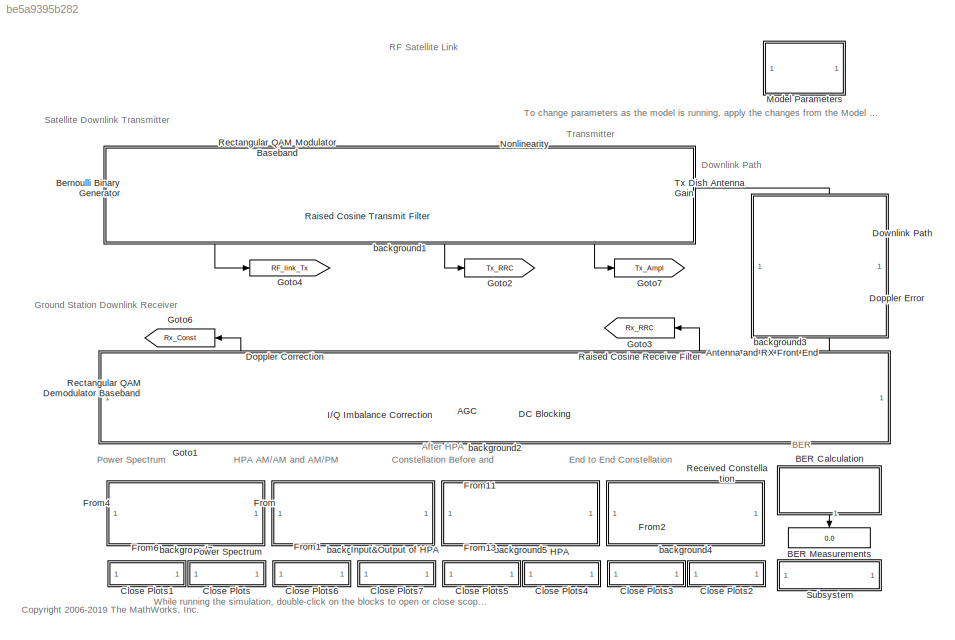
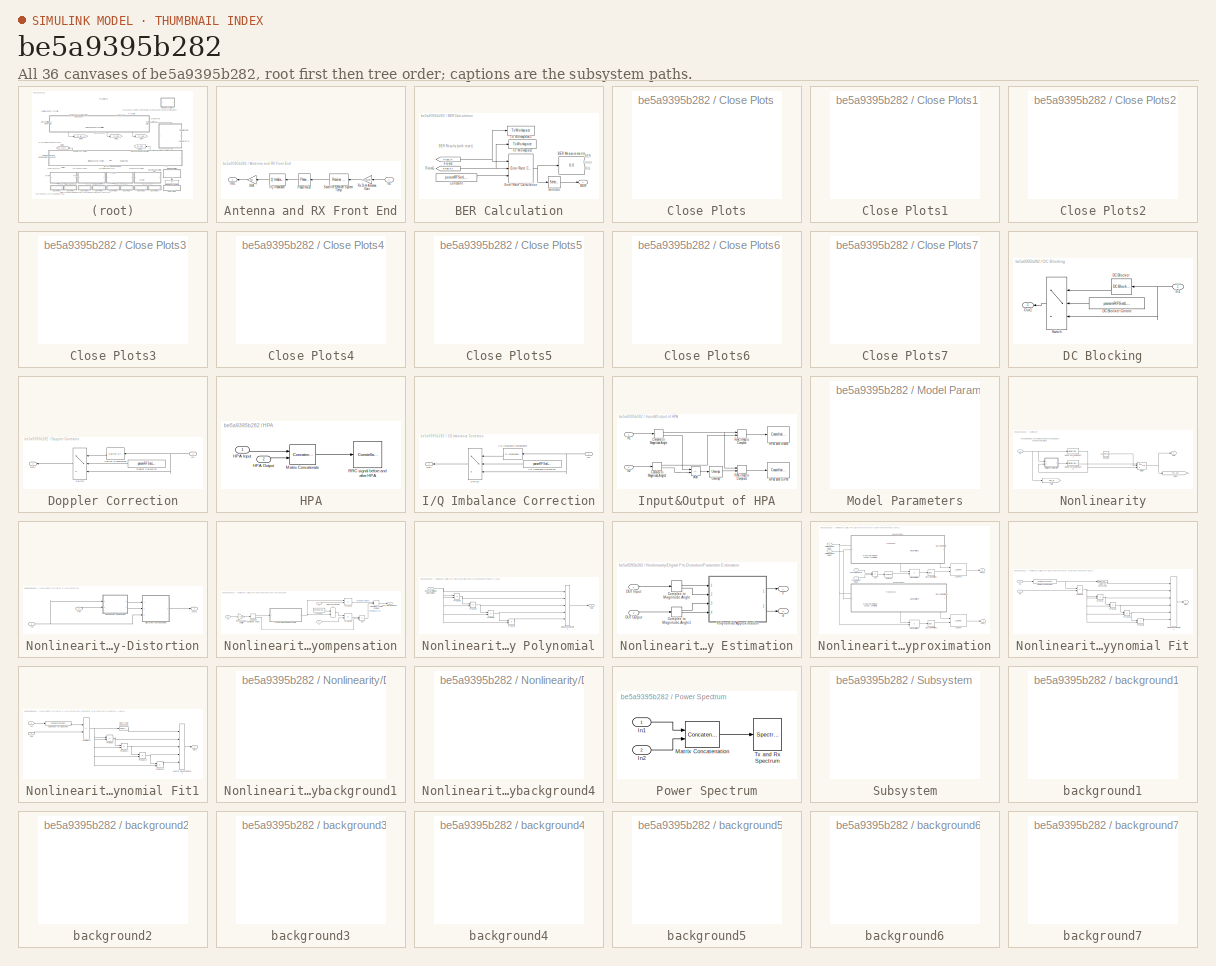
[diagram: thumbnail index - all 36 canvases of the model, root first then tree order]
MODEL slx_be5a9395b282
KIND model
CONFIG AbsTol = auto
CONFIG EnableMultiTasking = on
CONFIG FixedStep = auto
CONFIG MaxStep = auto
CONFIG MinStep = auto
CONFIG PreLoadFcn = commrfsatlink_mask(1, 2, 1, 1, 1, ...\n    0, 0, 0, 35600, 4000,[.4 .4],4,6,0);
CONFIG RelTol = 1e-3
CONFIG SampleTimeConstraint = Unconstrained
CONFIG Solver = VariableStepDiscrete
CONFIG SolverName = VariableStepDiscrete
CONFIG StartTime = 0.0
CONFIG StopTime = Inf
BLOCK [Reference] AGC  REF=commrfcorlib/AGC
  Ports = [1, 1]
  SourceBlock = commrfcorlib/AGC
  SourceProductBaseCode = CM
  SourceType = AGC
BLOCK [SubSystem] Antenna and RX Front End
  Ports = [1, 1]
  RequestExecContextInheritance = off
BLOCK [Reference] Antenna and RX Front End/I//Q Imbalance  REF=commrflib2/I//Q
Imbalance
  NameLocation = top
  Ports = [1, 1]
  SourceBlock = commrflib2/I//Q\nImbalance
  SourceProductBaseCode = CM
  SourceType = I/Q Imbalance
BLOCK [Inport] Antenna and RX Front End/In1
  NameLocation = top
BLOCK [Gain] Antenna and RX Front End/LNA
  Gain = 1e6
  NameLocation = top
BLOCK [Outport] Antenna and RX Front End/Out1
  NameLocation = top
  VectorParamsAs1DForOutWhenUnconnected = off
BLOCK [Reference] Antenna and RX Front End/Phase Noise  REF=impairlib/Phase
Noise
  NameLocation = top
  Ports = [1, 1]
  SourceBlock = impairlib/Phase\nNoise
  SourceProductBaseCode = CM,AM,SX
  SourceType = Phase Noise
BLOCK [Gain] Antenna and RX Front End/Rx Dish Antenna Gain
  Gain = paramRFSatLink.RXAntGain
  NameLocation = top
  OutDataTypeStr = Inherit: Same as input
  ParamDataTypeStr = Inherit: Same as input
  SaturateOnIntegerOverflow = on
BLOCK [Reference] Antenna and RX Front End/Satellite Receiver System Temp  REF=commrflib2/Receiver
Thermal Noise
  NameLocation = top
  Ports = [1, 1]
  SourceBlock = commrflib2/Receiver\nThermal Noise
  SourceProductBaseCode = CM
  SourceType = Receiver Thermal Noise
BLOCK [SubSystem] BER Calculation
  NameLocation = right
  Ports = [0, 1]
  RequestExecContextInheritance = off
BLOCK [Outport] BER Calculation/BER
  VectorParamsAs1DForOutWhenUnconnected = off
BLOCK [Display] BER Calculation/BER Measurements
  Decimation = 1
  Ports = [1]
BLOCK [Constant] BER Calculation/Constant
  SampleTime = paramRFSatLink.sourceSampleTime * paramRFSatLink.sourceSamplesPerSymbol
  Value = paramRFSatLink.resetBER
BLOCK [Reference] BER Calculation/Error Rate Calculation  REF=commsink2/Error Rate
Calculation
  Ports = [3, 1]
  SourceBlock = commsink2/Error Rate\nCalculation
  SourceProductBaseCode = CM
  SourceType = Error Rate Calculation
BLOCK [From] BER Calculation/From3
  GotoTag = RF_link_Tx
  TagVisibility = global
BLOCK [From] BER Calculation/From5
  GotoTag = RF_link_Rx
  TagVisibility = global
BLOCK [Selector] BER Calculation/Selector
  IndexOptions = Index vector (dialog)
  Indices = [1]
  InputPortWidth = 3
  OutputSizes = 1
  Ports = [1, 1]
BLOCK [ToWorkspace] BER Calculation/To Workspace
  FixptAsFi = on
  MaxDataPoints = inf
  Ports = [1]
  SampleTime = -1
  Save2DSignal = 2-D array (concatenate along first dimension)
  VariableName = RF_RX
BLOCK [ToWorkspace] BER Calculation/To Workspace1
  FixptAsFi = on
  MaxDataPoints = inf
  Ports = [1]
  SampleTime = -1
  VariableName = RF_TX
BLOCK [Display] BER Measurements
  Decimation = 1
  Format = short_e
  NameLocation = left
  Ports = [1]
BLOCK [Reference] Bernoulli Binary Generator  REF=commrandsrc3/Bernoulli Binary
Generator
  Ports = [0, 1]
  SourceBlock = commrandsrc3/Bernoulli Binary\nGenerator
  SourceProductBaseCode = CM
  SourceType = Bernoulli Binary Generator
BLOCK [SubSystem] Close Plots
  OpenFcn = sdspfscope2([],[],[],'ScopeUpdate',[bdroot '/Power Spectrum/Tx and Rx Spectrum'],'CloseFig');\nset_param([bdroot '/Power Spectrum/Tx and Rx Spectrum'],'OpenScopeAtSimStart','off');
  Ports = []
  RequestExecContextInheritance = off
BLOCK [SubSystem] Close Plots1
  OpenFcn = sdspfscope2([],[],[],'ScopeUpdate',[bdroot '/Power Spectrum/Tx and Rx Spectrum'],'OpenFig');\nset_param([bdroot '/Power Spectrum/Tx and Rx Spectrum'],'OpenScopeAtSimStart','on');
  Ports = []
  RequestExecContextInheritance = off
BLOCK [SubSystem] Close Plots2
  OpenFcn = sdspfscope2([],[],[],'ScopeUpdate',[bdroot '/Received Constellation'],'CloseFig');\n   set_param([bdroot '/Received Constellation'],'OpenScopeAtSimStart','off');
  Ports = []
  RequestExecContextInheritance = off
BLOCK [SubSystem] Close Plots3
  OpenFcn = sdspfscope2([],[],[],'ScopeUpdate',[bdroot '/Received Constellation'],'OpenFig');       \n    set_param([bdroot '/Received Constellation'],'OpenScopeAtSimStart','on');
  Ports = []
  RequestExecContextInheritance = off
BLOCK [SubSystem] Close Plots4
  OpenFcn = sdspfscope2([],[],[],'ScopeUpdate',[bdroot '/HPA/RRC signal before and after HPA'],'CloseFig');    \n  set_param([bdroot '/HPA/RRC signal before and after HPA'],'OpenScopeAtSimStart','off');
  Ports = []
  RequestExecContextInheritance = off
BLOCK [SubSystem] Close Plots5
  OpenFcn = sdspfscope2([],[],[],'ScopeUpdate',[bdroot '/HPA/RRC signal before and after HPA'],'OpenFig');      \nset_param([bdroot '/HPA/RRC signal before and after HPA'],'OpenScopeAtSimStart','on');
  Ports = []
  RequestExecContextInheritance = off
BLOCK [SubSystem] Close Plots6
  OpenFcn = sdspfscope2([],[],[],'ScopeUpdate',[bdroot '/Input&Output of HPA/HPA AM to AM'],'OpenFig');\nset_param([bdroot '/Input&Output of HPA/HPA AM to AM'],'OpenScopeAtSimStart','on');        \nsdspfscope2([],[],[],'ScopeUpdate',[bdroot '/Input&Output of HPA/HPA AM to PM'],'OpenFig');\nset_param([bdroot '/Input&Output of HPA/HPA AM to PM'],'OpenScopeAtSimStart','on');
  Ports = []
  RequestExecContextInheritance = off
BLOCK [SubSystem] Close Plots7
  OpenFcn = sdspfscope2([],[],[],'ScopeUpdate',[bdroot '/Input&Output of HPA/HPA AM to AM'],'CloseFig');\nset_param([bdroot '/Input&Output of HPA/HPA AM to AM'],'OpenScopeAtSimStart','off');        \nsdspfscope2([],[],[],'ScopeUpdate',[bdroot '/Input&Output of HPA/HPA AM to PM'],'CloseFig');\nset_param([bdroot '/Input&Output of HPA/HPA AM to PM'],'OpenScopeAtSimStart','off');
  Ports = []
  RequestExecContextInheritance = off
BLOCK [SubSystem] DC Blocking
  Ports = [1, 1]
  RequestExecContextInheritance = off
BLOCK [Reference] DC Blocking/DC Blocker  REF=dspsigops/DC Blocker
  Ports = [1, 1]
  SourceBlock = dspsigops/DC Blocker
  SourceProductBaseCode = DS
  SourceType = DCBlocker
BLOCK [Constant] DC Blocking/DC Blocker Control
  SampleTime = paramRFSatLink.sourceSampleTime * paramRFSatLink.sourceSamplesPerSymbol
  Value = paramRFSatLink.DCBlock
BLOCK [Inport] DC Blocking/In1
BLOCK [Outport] DC Blocking/Out1
  VectorParamsAs1DForOutWhenUnconnected = off
BLOCK [Switch] DC Blocking/Switch
  Criteria = u2 > Threshold
  InputSameDT = off
  SaturateOnIntegerOverflow = off
BLOCK [SubSystem] Doppler Correction
  Ports = [1, 1]
  RequestExecContextInheritance = off
BLOCK [Reference] Doppler Correction/Carrier Synchronizer  REF=commsync2/Carrier Synchronizer
  Ports = [1, 1]
  SourceBlock = commsync2/Carrier Synchronizer
  SourceProductBaseCode = CM
  SourceType = Carrier Synchronizer
BLOCK [Constant] Doppler Correction/Doppler Correction
  SampleTime = paramRFSatLink.sourceSampleTime * paramRFSatLink.sourceSamplesPerSymbol
  Value = paramRFSatLink.CarrierSync
BLOCK [Inport] Doppler Correction/In1
BLOCK [Outport] Doppler Correction/Out1
  VectorParamsAs1DForOutWhenUnconnected = off
BLOCK [Switch] Doppler Correction/Switch
  Criteria = u2 > Threshold
  InputSameDT = off
  SaturateOnIntegerOverflow = off
BLOCK [Reference] Doppler Error  REF=commrflib2/Phase//
Frequency
Offset
  NameLocation = left
  Ports = [1, 1]
  SourceBlock = commrflib2/Phase//\nFrequency\nOffset
  SourceProductBaseCode = CM
  SourceType = Phase/Frequency Offset
BLOCK [Reference] Downlink Path  REF=commrflib2/Free Space
Path Loss
  NameLocation = left
  Ports = [1, 1]
  SourceBlock = commrflib2/Free Space\nPath Loss
  SourceProductBaseCode = CM
  SourceType = Free Space Path Loss
BLOCK [From] From
  GotoTag = HPA_In
  TagVisibility = global
BLOCK [From] From1
  GotoTag = HPA_Out
  TagVisibility = global
BLOCK [From] From11
  GotoTag = Tx_RRC
  TagVisibility = global
BLOCK [From] From13
  GotoTag = Tx_Ampl
  TagVisibility = global
BLOCK [From] From2
  GotoTag = Rx_Const
  TagVisibility = global
BLOCK [From] From4
  GotoTag = Tx_RRC
  TagVisibility = global
BLOCK [From] From6
  GotoTag = Rx_RRC
  TagVisibility = global
BLOCK [Goto] Goto1
  GotoTag = RF_link_Rx
  NameLocation = top
  TagVisibility = global
BLOCK [Goto] Goto2
  GotoTag = Tx_RRC
  NameLocation = top
  TagVisibility = global
BLOCK [Goto] Goto3
  GotoTag = Rx_RRC
  NameLocation = top
  TagVisibility = global
BLOCK [Goto] Goto4
  GotoTag = RF_link_Tx
  NameLocation = top
  TagVisibility = global
BLOCK [Goto] Goto6
  GotoTag = Rx_Const
  TagVisibility = global
BLOCK [Goto] Goto7
  GotoTag = Tx_Ampl
  NameLocation = top
  TagVisibility = global
BLOCK [SubSystem] HPA
  Ports = [2]
  RequestExecContextInheritance = off
  TreatAsAtomicUnit = on
BLOCK [Inport] HPA/HPA Input
BLOCK [Inport] HPA/HPA Output
  Port = 2
BLOCK [Concatenate] HPA/Matrix Concatenate
  ConcatenateDimension = 2
  Mode = Multidimensional array
  Ports = [2, 1]
BLOCK [ConstellationDiagram] HPA/RRC signal before and after HPA
  Ports = [1]
  ScopeSpecificationString = comm.scopes.ConstellationDiagramBlockCfg('CurrentConfiguration', extmgr.ConfigurationSet(extmgr.Configuration('Core','General UI',true),extmgr.Configuration('Core','Source UI',true),extmgr.Configuration('Sources','WiredSimulink',true),extmgr.Configuration('Sources','SPTool',false),extmgr.Configuration('Sources','File',false),extmgr.Configuration('Sources','Streaming',false),extmgr.Configuration('S...<+2225ch>
BLOCK [SubSystem] I//Q Imbalance Correction
  Ports = [1, 1]
  RequestExecContextInheritance = off
BLOCK [Reference] I//Q Imbalance Correction/I//Q Imbalance Compensator  REF=commrfcorlib/I//Q Imbalance Compensator
  Ports = [1, 1]
  SourceBlock = commrfcorlib/I//Q Imbalance Compensator
  SourceProductBaseCode = CM
  SourceType = I/Q Imbalance Compensator
BLOCK [Constant] I//Q Imbalance Correction/I//Q Imbalance Correction
  SampleTime = paramRFSatLink.sourceSampleTime * paramRFSatLink.sourceSamplesPerSymbol
  Value = paramRFSatLink.IQComp
BLOCK [Inport] I//Q Imbalance Correction/In1
BLOCK [Outport] I//Q Imbalance Correction/Out1
  VectorParamsAs1DForOutWhenUnconnected = off
BLOCK [Switch] I//Q Imbalance Correction/Switch
  Criteria = u2 > Threshold
  InputSameDT = off
  SaturateOnIntegerOverflow = off
BLOCK [SubSystem] Input&Output of HPA
  Ports = [2]
  RequestExecContextInheritance = off
  ShowPortLabels = none
BLOCK [Sum] Input&Output of HPA/Add
  IconShape = rectangular
  Inputs = -+
  Ports = [2, 1]
BLOCK [ComplexToMagnitudeAngle] Input&Output of HPA/Complex to Magnitude-Angle
  Ports = [1, 2]
BLOCK [ComplexToMagnitudeAngle] Input&Output of HPA/Complex to Magnitude-Angle1
  Ports = [1, 2]
BLOCK [ConstellationDiagram] Input&Output of HPA/HPA AM to AM
  Ports = [1]
  ScopeSpecificationString = comm.scopes.ConstellationDiagramBlockCfg('CurrentConfiguration', extmgr.ConfigurationSet(extmgr.Configuration('Core','General UI',true),extmgr.Configuration('Core','Source UI',true),extmgr.Configuration('Sources','WiredSimulink',true),extmgr.Configuration('Sources','Streaming',false),extmgr.Configuration('Sources','Simulink',false),extmgr.Configuration('Sources','Workspace',false),extmgr.Configura...<+2173ch>
  Tag = ScatterPlot
BLOCK [ConstellationDiagram] Input&Output of HPA/HPA AM to PM
  Ports = [1]
  ScopeSpecificationString = comm.scopes.ConstellationDiagramBlockCfg('CurrentConfiguration', extmgr.ConfigurationSet(extmgr.Configuration('Core','General UI',true),extmgr.Configuration('Core','Source UI',true),extmgr.Configuration('Sources','SPTool',false),extmgr.Configuration('Sources','Streaming',false),extmgr.Configuration('Sources','File',false),extmgr.Configuration('Sources','Workspace',false),extmgr.Configuration('Sour...<+1776ch>
  Tag = ScatterPlot
BLOCK [Inport] Input&Output of HPA/In1
BLOCK [Inport] Input&Output of HPA/In2
  Port = 2
BLOCK [RealImagToComplex] Input&Output of HPA/Real-Imag to Complex
  Ports = [2, 1]
BLOCK [RealImagToComplex] Input&Output of HPA/Real-Imag to Complex1
  Ports = [2, 1]
BLOCK [Reference] Input&Output of HPA/Unwrap  REF=dspsigops/Unwrap
  Ports = [1, 1]
  SourceBlock = dspsigops/Unwrap
  SourceProductBaseCode = DS
  SourceType = Unwrap
  UserDataPersistent = on
BLOCK [SubSystem] Model Parameters
  Ports = []
  RequestExecContextInheritance = off
BLOCK [SubSystem] Nonlinearity
  Ports = [1, 1]
  RequestExecContextInheritance = off
BLOCK [Constant] Nonlinearity/Constant
  SampleTime = paramRFSatLink.sourceSampleTime * paramRFSatLink.sourceSamplesPerSymbol
  Value = paramRFSatLink.preDistortion
  VectorParams1D = off
BLOCK [SubSystem] Nonlinearity/Digital Pre-Distortion
  Ports = [2, 1]
  RequestExecContextInheritance = off
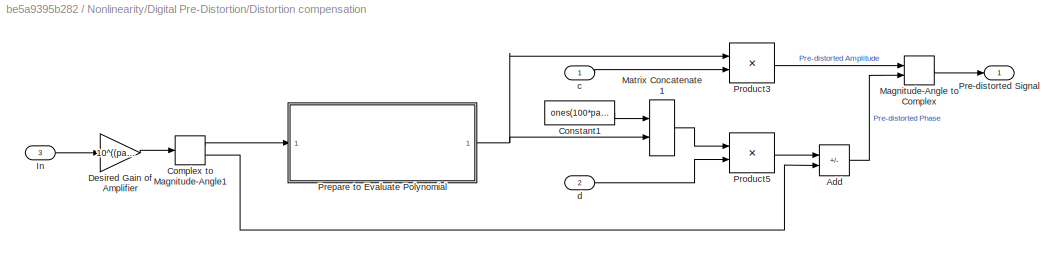
BLOCK [SubSystem] Nonlinearity/Digital Pre-Distortion/Distortion compensation
  Ports = [3, 1]
  RequestExecContextInheritance = off
BLOCK [Sum] Nonlinearity/Digital Pre-Distortion/Distortion compensation/Add
  IconShape = rectangular
  Inputs = -+
  Ports = [2, 1]
BLOCK [ComplexToMagnitudeAngle] Nonlinearity/Digital Pre-Distortion/Distortion compensation/Complex to Magnitude-Angle1
  Ports = [1, 2]
BLOCK [Constant] Nonlinearity/Digital Pre-Distortion/Distortion compensation/Constant1
  Value = ones(100*paramRFSatLink.SamplesPerSymbol, 1)
BLOCK [Gain] Nonlinearity/Digital Pre-Distortion/Distortion compensation/Desired Gain of Amplifier
  Gain = 10^((paramRFSatLink.GindB + paramRFSatLink.GoutdB)/10)
BLOCK [Inport] Nonlinearity/Digital Pre-Distortion/Distortion compensation/In
  Port = 3
BLOCK [MagnitudeAngleToComplex] Nonlinearity/Digital Pre-Distortion/Distortion compensation/Magnitude-Angle to Complex
  Ports = [2, 1]
BLOCK [Concatenate] Nonlinearity/Digital Pre-Distortion/Distortion compensation/Matrix Concatenate1
  ConcatenateDimension = 2
  Mode = Multidimensional array
  Ports = [2, 1]
BLOCK [Outport] Nonlinearity/Digital Pre-Distortion/Distortion compensation/Pre-distorted Signal
  VectorParamsAs1DForOutWhenUnconnected = off
BLOCK [SubSystem] Nonlinearity/Digital Pre-Distortion/Distortion compensation/Prepare to Evaluate Polynomial
  Ports = [1, 1]
  RequestExecContextInheritance = off
BLOCK [Inport] Nonlinearity/Digital Pre-Distortion/Distortion compensation/Prepare to Evaluate Polynomial/Desired Amplitude of DUT Output
BLOCK [Concatenate] Nonlinearity/Digital Pre-Distortion/Distortion compensation/Prepare to Evaluate Polynomial/Matrix Concatenate1
  ConcatenateDimension = 2
  Mode = Multidimensional array
  NumInputs = 5
  Ports = [5, 1]
BLOCK [Outport] Nonlinearity/Digital Pre-Distortion/Distortion compensation/Prepare to Evaluate Polynomial/Out1
  VectorParamsAs1DForOutWhenUnconnected = off
BLOCK [Product] Nonlinearity/Digital Pre-Distortion/Distortion compensation/Prepare to Evaluate Polynomial/Product6
  Ports = [2, 1]
  RndMeth = Zero
BLOCK [Product] Nonlinearity/Digital Pre-Distortion/Distortion compensation/Prepare to Evaluate Polynomial/Product7
  Ports = [2, 1]
  RndMeth = Zero
BLOCK [Product] Nonlinearity/Digital Pre-Distortion/Distortion compensation/Prepare to Evaluate Polynomial/Product8
  Ports = [2, 1]
  RndMeth = Zero
BLOCK [Product] Nonlinearity/Digital Pre-Distortion/Distortion compensation/Prepare to Evaluate Polynomial/Product9
  Ports = [2, 1]
  RndMeth = Zero
BLOCK [Product] Nonlinearity/Digital Pre-Distortion/Distortion compensation/Product3
  Multiplication = Matrix(*)
  Ports = [2, 1]
  RndMeth = Zero
BLOCK [Product] Nonlinearity/Digital Pre-Distortion/Distortion compensation/Product5
  Multiplication = Matrix(*)
  Ports = [2, 1]
  RndMeth = Zero
BLOCK [Inport] Nonlinearity/Digital Pre-Distortion/Distortion compensation/c
BLOCK [Inport] Nonlinearity/Digital Pre-Distortion/Distortion compensation/d
  Port = 2
BLOCK [Inport] Nonlinearity/Digital Pre-Distortion/In1
BLOCK [Inport] Nonlinearity/Digital Pre-Distortion/In2
  Port = 2
BLOCK [Outport] Nonlinearity/Digital Pre-Distortion/Out1
  VectorParamsAs1DForOutWhenUnconnected = off
BLOCK [SubSystem] Nonlinearity/Digital Pre-Distortion/Parameter Estimation
  Ports = [2, 2]
  RequestExecContextInheritance = off
BLOCK [ComplexToMagnitudeAngle] Nonlinearity/Digital Pre-Distortion/Parameter Estimation/Complex to Magnitude-Angle
  Ports = [1, 2]
BLOCK [ComplexToMagnitudeAngle] Nonlinearity/Digital Pre-Distortion/Parameter Estimation/Complex to Magnitude-Angle1
  Ports = [1, 2]
BLOCK [Inport] Nonlinearity/Digital Pre-Distortion/Parameter Estimation/DUT Input
BLOCK [Inport] Nonlinearity/Digital Pre-Distortion/Parameter Estimation/DUT Output
  Port = 2
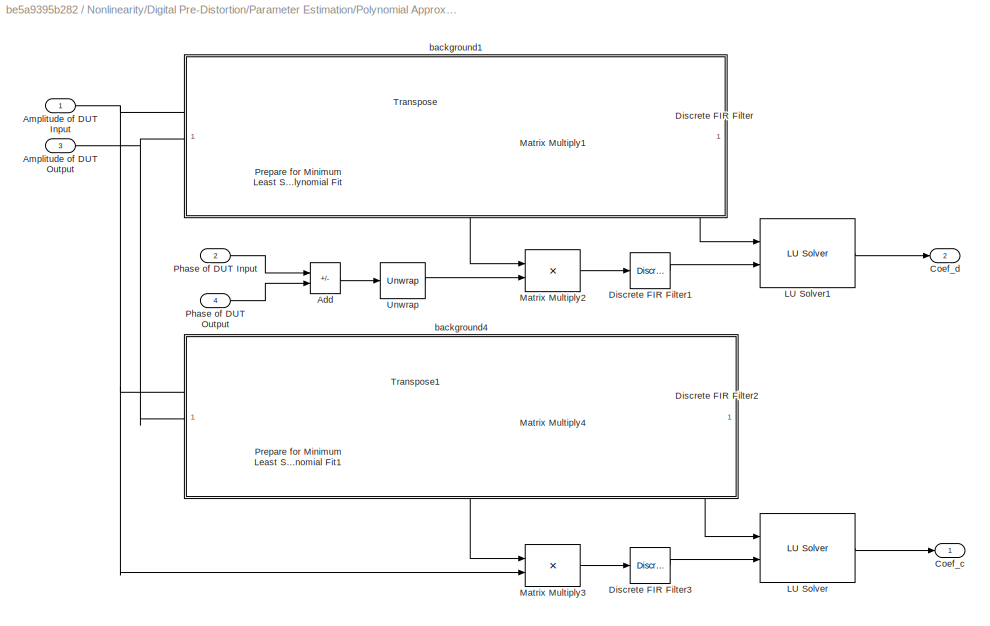
BLOCK [SubSystem] Nonlinearity/Digital Pre-Distortion/Parameter Estimation/Polynomial Approximation
  Ports = [4, 2]
  RequestExecContextInheritance = off
BLOCK [Sum] Nonlinearity/Digital Pre-Distortion/Parameter Estimation/Polynomial Approximation/Add
  IconShape = rectangular
  Inputs = -+
  Ports = [2, 1]
BLOCK [Inport] Nonlinearity/Digital Pre-Distortion/Parameter Estimation/Polynomial Approximation/Amplitude of DUT Input
BLOCK [Inport] Nonlinearity/Digital Pre-Distortion/Parameter Estimation/Polynomial Approximation/Amplitude of DUT Output
  Port = 3
BLOCK [Outport] Nonlinearity/Digital Pre-Distortion/Parameter Estimation/Polynomial Approximation/Coef_c
  VectorParamsAs1DForOutWhenUnconnected = off
BLOCK [Outport] Nonlinearity/Digital Pre-Distortion/Parameter Estimation/Polynomial Approximation/Coef_d
  Port = 2
  VectorParamsAs1DForOutWhenUnconnected = off
BLOCK [DiscreteFir] Nonlinearity/Digital Pre-Distortion/Parameter Estimation/Polynomial Approximation/Discrete FIR Filter
  AccumDataTypeStr = Inherit: Same as product output
  Coefficients = ones(1,50)
  InputPortMap = u0
  OutputPortMap = o0
  Ports = [1, 1]
  ProductDataTypeStr = Inherit: Same as input
BLOCK [DiscreteFir] Nonlinearity/Digital Pre-Distortion/Parameter Estimation/Polynomial Approximation/Discrete FIR Filter1
  AccumDataTypeStr = Inherit: Same as product output
  Coefficients = ones(1,50)
  InputPortMap = u0
  OutputPortMap = o0
  Ports = [1, 1]
  ProductDataTypeStr = Inherit: Same as input
BLOCK [DiscreteFir] Nonlinearity/Digital Pre-Distortion/Parameter Estimation/Polynomial Approximation/Discrete FIR Filter2
  AccumDataTypeStr = Inherit: Same as product output
  Coefficients = ones(1,50)
  InputPortMap = u0
  OutputPortMap = o0
  Ports = [1, 1]
  ProductDataTypeStr = Inherit: Same as input
BLOCK [DiscreteFir] Nonlinearity/Digital Pre-Distortion/Parameter Estimation/Polynomial Approximation/Discrete FIR Filter3
  AccumDataTypeStr = Inherit: Same as product output
  Coefficients = ones(1,50)
  InputPortMap = u0
  OutputPortMap = o0
  Ports = [1, 1]
  ProductDataTypeStr = Inherit: Same as input
BLOCK [Reference] Nonlinearity/Digital Pre-Distortion/Parameter Estimation/Polynomial Approximation/LU Solver  REF=dspsolvers/LU Solver
  Ports = [2, 1]
  SourceBlock = dspsolvers/LU Solver
  SourceProductBaseCode = DS
  SourceType = LU Solver
BLOCK [Reference] Nonlinearity/Digital Pre-Distortion/Parameter Estimation/Polynomial Approximation/LU Solver1  REF=dspsolvers/LU Solver
  Ports = [2, 1]
  SourceBlock = dspsolvers/LU Solver
  SourceProductBaseCode = DS
  SourceType = LU Solver
BLOCK [Product] Nonlinearity/Digital Pre-Distortion/Parameter Estimation/Polynomial Approximation/Matrix Multiply1
  Multiplication = Matrix(*)
  Ports = [2, 1]
BLOCK [Product] Nonlinearity/Digital Pre-Distortion/Parameter Estimation/Polynomial Approximation/Matrix Multiply2
  Multiplication = Matrix(*)
  Ports = [2, 1]
BLOCK [Product] Nonlinearity/Digital Pre-Distortion/Parameter Estimation/Polynomial Approximation/Matrix Multiply3
  Multiplication = Matrix(*)
  Ports = [2, 1]
BLOCK [Product] Nonlinearity/Digital Pre-Distortion/Parameter Estimation/Polynomial Approximation/Matrix Multiply4
  Multiplication = Matrix(*)
  Ports = [2, 1]
BLOCK [Inport] Nonlinearity/Digital Pre-Distortion/Parameter Estimation/Polynomial Approximation/Phase of DUT Input
  Port = 2
BLOCK [Inport] Nonlinearity/Digital Pre-Distortion/Parameter Estimation/Polynomial Approximation/Phase of DUT Output
  Port = 4
BLOCK [SubSystem] Nonlinearity/Digital Pre-Distortion/Parameter Estimation/Polynomial Approximation/Prepare for Minimum Least Square Error Polynomial Fit
  Ports = [2, 1]
  RequestExecContextInheritance = off
BLOCK [Reference] Nonlinearity/Digital Pre-Distortion/Parameter Estimation/Polynomial Approximation/Prepare for Minimum Least Square Error Polynomial Fit/Compare To Constant  REF=simulink/Logic and Bit
Operations/Compare
To Constant
  Ports = [1, 1]
  SourceBlock = simulink/Logic and Bit\nOperations/Compare\nTo Constant
  SourceProductBaseCode = SL
  SourceType = Compare To Constant
BLOCK [DataTypeConversion] Nonlinearity/Digital Pre-Distortion/Parameter Estimation/Polynomial Approximation/Prepare for Minimum Least Square Error Polynomial Fit/Data Type Conversion
  OutDataTypeStr = double
  RndMeth = Floor
  SaturateOnIntegerOverflow = off
BLOCK [Inport] Nonlinearity/Digital Pre-Distortion/Parameter Estimation/Polynomial Approximation/Prepare for Minimum Least Square Error Polynomial Fit/In1
BLOCK [Inport] Nonlinearity/Digital Pre-Distortion/Parameter Estimation/Polynomial Approximation/Prepare for Minimum Least Square Error Polynomial Fit/In2
  Port = 2
BLOCK [Concatenate] Nonlinearity/Digital Pre-Distortion/Parameter Estimation/Polynomial Approximation/Prepare for Minimum Least Square Error Polynomial Fit/Matrix Concatenate1
  ConcatenateDimension = 2
  Mode = Multidimensional array
  NumInputs = 6
  Ports = [6, 1]
BLOCK [Outport] Nonlinearity/Digital Pre-Distortion/Parameter Estimation/Polynomial Approximation/Prepare for Minimum Least Square Error Polynomial Fit/Out1
  VectorParamsAs1DForOutWhenUnconnected = off
BLOCK [Product] Nonlinearity/Digital Pre-Distortion/Parameter Estimation/Polynomial Approximation/Prepare for Minimum Least Square Error Polynomial Fit/Product
  Ports = [2, 1]
  RndMeth = Zero
BLOCK [Product] Nonlinearity/Digital Pre-Distortion/Parameter Estimation/Polynomial Approximation/Prepare for Minimum Least Square Error Polynomial Fit/Product2
  Ports = [2, 1]
  RndMeth = Zero
BLOCK [Product] Nonlinearity/Digital Pre-Distortion/Parameter Estimation/Polynomial Approximation/Prepare for Minimum Least Square Error Polynomial Fit/Product3
  Ports = [2, 1]
  RndMeth = Zero
BLOCK [Product] Nonlinearity/Digital Pre-Distortion/Parameter Estimation/Polynomial Approximation/Prepare for Minimum Least Square Error Polynomial Fit/Product4
  Ports = [2, 1]
  RndMeth = Zero
BLOCK [Product] Nonlinearity/Digital Pre-Distortion/Parameter Estimation/Polynomial Approximation/Prepare for Minimum Least Square Error Polynomial Fit/Product5
  Ports = [2, 1]
  RndMeth = Zero
BLOCK [SubSystem] Nonlinearity/Digital Pre-Distortion/Parameter Estimation/Polynomial Approximation/Prepare for Minimum Least Square Error Polynomial Fit1
  Ports = [2, 1]
  RequestExecContextInheritance = off
BLOCK [Reference] Nonlinearity/Digital Pre-Distortion/Parameter Estimation/Polynomial Approximation/Prepare for Minimum Least Square Error Polynomial Fit1/Compare To Constant  REF=simulink/Logic and Bit
Operations/Compare
To Constant
  Ports = [1, 1]
  SourceBlock = simulink/Logic and Bit\nOperations/Compare\nTo Constant
  SourceProductBaseCode = SL
  SourceType = Compare To Constant
BLOCK [DataTypeConversion] Nonlinearity/Digital Pre-Distortion/Parameter Estimation/Polynomial Approximation/Prepare for Minimum Least Square Error Polynomial Fit1/Data Type Conversion
  OutDataTypeStr = double
  RndMeth = Floor
  SaturateOnIntegerOverflow = off
BLOCK [Inport] Nonlinearity/Digital Pre-Distortion/Parameter Estimation/Polynomial Approximation/Prepare for Minimum Least Square Error Polynomial Fit1/In1
BLOCK [Inport] Nonlinearity/Digital Pre-Distortion/Parameter Estimation/Polynomial Approximation/Prepare for Minimum Least Square Error Polynomial Fit1/In2
  Port = 2
BLOCK [Concatenate] Nonlinearity/Digital Pre-Distortion/Parameter Estimation/Polynomial Approximation/Prepare for Minimum Least Square Error Polynomial Fit1/Matrix Concatenate1
  ConcatenateDimension = 2
  Mode = Multidimensional array
  NumInputs = 5
  Ports = [5, 1]
BLOCK [Outport] Nonlinearity/Digital Pre-Distortion/Parameter Estimation/Polynomial Approximation/Prepare for Minimum Least Square Error Polynomial Fit1/Out1
  VectorParamsAs1DForOutWhenUnconnected = off
BLOCK [Product] Nonlinearity/Digital Pre-Distortion/Parameter Estimation/Polynomial Approximation/Prepare for Minimum Least Square Error Polynomial Fit1/Product
  Ports = [2, 1]
  RndMeth = Zero
BLOCK [Product] Nonlinearity/Digital Pre-Distortion/Parameter Estimation/Polynomial Approximation/Prepare for Minimum Least Square Error Polynomial Fit1/Product2
  Ports = [2, 1]
  RndMeth = Zero
BLOCK [Product] Nonlinearity/Digital Pre-Distortion/Parameter Estimation/Polynomial Approximation/Prepare for Minimum Least Square Error Polynomial Fit1/Product3
  Ports = [2, 1]
  RndMeth = Zero
BLOCK [Product] Nonlinearity/Digital Pre-Distortion/Parameter Estimation/Polynomial Approximation/Prepare for Minimum Least Square Error Polynomial Fit1/Product4
  Ports = [2, 1]
  RndMeth = Zero
BLOCK [Product] Nonlinearity/Digital Pre-Distortion/Parameter Estimation/Polynomial Approximation/Prepare for Minimum Least Square Error Polynomial Fit1/Product5
  Ports = [2, 1]
  RndMeth = Zero
BLOCK [Math] Nonlinearity/Digital Pre-Distortion/Parameter Estimation/Polynomial Approximation/Transpose
  Operator = transpose
  Ports = [1, 1]
  SignedPower = on
BLOCK [Math] Nonlinearity/Digital Pre-Distortion/Parameter Estimation/Polynomial Approximation/Transpose1
  Operator = transpose
  Ports = [1, 1]
  SignedPower = on
BLOCK [Reference] Nonlinearity/Digital Pre-Distortion/Parameter Estimation/Polynomial Approximation/Unwrap  REF=dspsigops/Unwrap
  Ports = [1, 1]
  SourceBlock = dspsigops/Unwrap
  SourceProductBaseCode = DS
  SourceType = Unwrap
  UserDataPersistent = on
BLOCK [SubSystem] Nonlinearity/Digital Pre-Distortion/Parameter Estimation/Polynomial Approximation/background1
  Ports = []
  RequestExecContextInheritance = off
BLOCK [SubSystem] Nonlinearity/Digital Pre-Distortion/Parameter Estimation/Polynomial Approximation/background4
  Ports = []
  RequestExecContextInheritance = off
BLOCK [Outport] Nonlinearity/Digital Pre-Distortion/Parameter Estimation/c
  VectorParamsAs1DForOutWhenUnconnected = off
BLOCK [Outport] Nonlinearity/Digital Pre-Distortion/Parameter Estimation/d
  Port = 2
  VectorParamsAs1DForOutWhenUnconnected = off
BLOCK [Goto] Nonlinearity/Goto
  GotoTag = HPA_In
  TagVisibility = global
BLOCK [Goto] Nonlinearity/Goto1
  GotoTag = HPA_Out
  TagVisibility = global
BLOCK [Inport] Nonlinearity/In
BLOCK [Reference] Nonlinearity/Memoryless Nonlinearity  REF=commrflib2/Memoryless
Nonlinearity
  Ports = [1, 1]
  SourceBlock = commrflib2/Memoryless\nNonlinearity
  SourceProductBaseCode = CM
  SourceType = Memoryless Nonlinearity
BLOCK [Reference] Nonlinearity/Memoryless Nonlinearity1  REF=commrflib2/Memoryless
Nonlinearity
  Ports = [1, 1]
  SourceBlock = commrflib2/Memoryless\nNonlinearity
  SourceProductBaseCode = CM
  SourceType = Memoryless Nonlinearity
BLOCK [Outport] Nonlinearity/Out2
  VectorParamsAs1DForOutWhenUnconnected = off
BLOCK [Switch] Nonlinearity/Switch
  Criteria = u2 > Threshold
  InputSameDT = off
  SaturateOnIntegerOverflow = off
  Threshold = 0.5
  ZeroCross = off
BLOCK [SubSystem] Power Spectrum
  Ports = [2]
  RequestExecContextInheritance = off
  TreatAsAtomicUnit = on
BLOCK [Inport] Power Spectrum/In1
BLOCK [Inport] Power Spectrum/In2
  Port = 2
BLOCK [Concatenate] Power Spectrum/Matrix Concatenation
  ConcatenateDimension = 2
  Mode = Multidimensional array
  Ports = [2, 1]
BLOCK [SpectrumAnalyzer] Power Spectrum/Tx and Rx Spectrum
  Ports = [1]
  ScopeSpecificationString = spbscopes.SpectrumAnalyzerBlockCfg('CurrentConfiguration', extmgr.ConfigurationSet(extmgr.Configuration('Core','General UI',true),extmgr.Configuration('Core','Source UI',true),extmgr.Configuration('Sources','WiredSimulink',true),extmgr.Configuration('Sources','Workspace',false),extmgr.Configuration('Sources','Simulink',false),extmgr.Configuration('Sources','File',false),extmgr.Configuration('Sourc...<+2768ch>
BLOCK [Reference] Raised Cosine Receive Filter  REF=commfilt2/Raised Cosine
Receive Filter
  Ports = [1, 1]
  SourceBlock = commfilt2/Raised Cosine\nReceive Filter
  SourceProductBaseCode = CM
  SourceType = Raised Cosine Receive Filter
  UserDataPersistent = on
BLOCK [Reference] Raised Cosine Transmit Filter  REF=commfilt2/Raised Cosine
Transmit Filter
  Ports = [1, 1]
  SourceBlock = commfilt2/Raised Cosine\nTransmit Filter
  SourceProductBaseCode = CM
  SourceType = Raised Cosine Transmit Filter
  UserDataPersistent = on
BLOCK [ConstellationDiagram] Received Constellation
  Ports = [1]
  ScopeSpecificationString = comm.scopes.ConstellationDiagramBlockCfg('CurrentConfiguration', extmgr.ConfigurationSet(extmgr.Configuration('Core','General UI',true,'ShowConfiguration',true),extmgr.Configuration('Core','Source UI',true,'ShowPlaybackCmdMode',false),extmgr.Configuration('Sources','WiredSimulink',true),extmgr.Configuration('Sources','Streaming',false),extmgr.Configuration('Sources','SPTool',false),extmgr.Configur...<+2805ch>
  Tag = ScatterPlot
BLOCK [Reference] Rectangular QAM Demodulator Baseband  REF=commdigbbndam3/Rectangular QAM
Demodulator
Baseband
  Ports = [1, 1]
  SourceBlock = commdigbbndam3/Rectangular QAM\nDemodulator\nBaseband
  SourceProductBaseCode = CM
  SourceType = Rectangular QAM Demodulator Baseband
BLOCK [Reference] Rectangular QAM Modulator Baseband  REF=commdigbbndam3/Rectangular QAM
Modulator
Baseband
  Ports = [1, 1]
  SourceBlock = commdigbbndam3/Rectangular QAM\nModulator\nBaseband
  SourceProductBaseCode = CM
  SourceType = Rectangular QAM Modulator Baseband
BLOCK [SubSystem] Subsystem
  OpenFcn = % Set value to reset BER\nwarning('off', 'Simulink:Engine:NonTunableVarChanged');\nparamRFSatLink.resetBER = 1;\nset_param(bdroot, 'SimulationCommand', 'update');\npause(0.1)\n\n% Set value so that BER is not continually reset\nparamRFSatLink.resetBER = 0;\nset_param(bdroot, 'SimulationCommand', 'update');\nwarning('on', 'Simulink:Engine:NonTunableVarChanged');
  Ports = []
  RequestExecContextInheritance = off
BLOCK [Gain] Tx Dish Antenna Gain
  Gain = paramRFSatLink.TXAntGain
  OutDataTypeStr = Inherit: Same as input
  ParamDataTypeStr = Inherit: Same as input
  SaturateOnIntegerOverflow = on
BLOCK [SubSystem] background1
  Ports = []
  RequestExecContextInheritance = off
BLOCK [SubSystem] background2
  Ports = []
  RequestExecContextInheritance = off
BLOCK [SubSystem] background3
  Ports = []
  RequestExecContextInheritance = off
BLOCK [SubSystem] background4
  Ports = []
  RequestExecContextInheritance = off
BLOCK [SubSystem] background5
  Ports = []
  RequestExecContextInheritance = off
BLOCK [SubSystem] background6
  Ports = []
  RequestExecContextInheritance = off
BLOCK [SubSystem] background7
  Ports = []
  RequestExecContextInheritance = off
ANNOTATION (root): To change parameters as the model is running, apply the changes from the Model Parameters dialog and then apply 'Update Diagram' to the model (ctrl-d).
ANNOTATION (root): BER
ANNOTATION (root): Constellation Before and After HPA
ANNOTATION (root): <copyright redacted>
ANNOTATION (root): Downlink Path
ANNOTATION (root): End to End Constellation
ANNOTATION (root): Ground Station Downlink Receiver
ANNOTATION (root): HPA AM/AM and AM/PM
ANNOTATION (root): Power Spectrum
ANNOTATION (root): RF Satellite Link
ANNOTATION (root): Satellite Downlink Transmitter
ANNOTATION (root): Transmitter
ANNOTATION (root): While running the simulation, double-click on the blocks to open or close scopes
ANNOTATION BER Calculation: BER
ANNOTATION BER Calculation: BER Results (with reset)
ANNOTATION BER Calculation: Bits
ANNOTATION BER Calculation: Errors
ANNOTATION Nonlinearity: These two Memoryless Nonlinearity blocks should always have the same settings.
LINE AGC:1 -> I//Q Imbalance Correction:1
LINE Antenna and RX Front End/I//Q Imbalance:1 -> Antenna and RX Front End/LNA:1
LINE Antenna and RX Front End/In1:1 -> Antenna and RX Front End/Rx Dish Antenna Gain:1
LINE Antenna and RX Front End/LNA:1 -> Antenna and RX Front End/Out1:1
LINE Antenna and RX Front End/Phase Noise:1 -> Antenna and RX Front End/I//Q Imbalance:1
LINE Antenna and RX Front End/Rx Dish Antenna Gain:1 -> Antenna and RX Front End/Satellite Receiver System Temp:1
LINE Antenna and RX Front End/Satellite Receiver System Temp:1 -> Antenna and RX Front End/Phase Noise:1
NET Antenna and RX Front End:1 -> Goto3:1, Raised Cosine Receive Filter:1
LINE BER Calculation/Constant:1 -> BER Calculation/Error Rate Calculation:3
NET BER Calculation/Error Rate Calculation:1 -> BER Calculation/BER Measurements:1, BER Calculation/Selector:1
NET BER Calculation/From3:1 -> BER Calculation/Error Rate Calculation:1, BER Calculation/To Workspace1:1
NET BER Calculation/From5:1 -> BER Calculation/Error Rate Calculation:2, BER Calculation/To Workspace:1
LINE BER Calculation/Selector:1 -> BER Calculation/BER:1
LINE BER Calculation:1 -> BER Measurements:1
NET Bernoulli Binary Generator:1 -> Goto4:1, Rectangular QAM Modulator Baseband:1
LINE DC Blocking/DC Blocker Control:1 -> DC Blocking/Switch:2
LINE DC Blocking/DC Blocker:1 -> DC Blocking/Switch:1
NET DC Blocking/In1:1 -> DC Blocking/DC Blocker:1, DC Blocking/Switch:3
LINE DC Blocking/Switch:1 -> DC Blocking/Out1:1
LINE DC Blocking:1 -> AGC:1
LINE Doppler Correction/Carrier Synchronizer:1 -> Doppler Correction/Switch:1
LINE Doppler Correction/Doppler Correction:1 -> Doppler Correction/Switch:2
NET Doppler Correction/In1:1 -> Doppler Correction/Carrier Synchronizer:1, Doppler Correction/Switch:3
LINE Doppler Correction/Switch:1 -> Doppler Correction/Out1:1
NET Doppler Correction:1 -> Goto6:1, Rectangular QAM Demodulator Baseband:1
LINE Doppler Error:1 -> Antenna and RX Front End:1
LINE Downlink Path:1 -> Doppler Error:1
LINE From11:1 -> HPA:1
LINE From13:1 -> HPA:2
LINE From1:1 -> Input&Output of HPA:2
LINE From2:1 -> Received Constellation:1
LINE From4:1 -> Power Spectrum:1
LINE From6:1 -> Power Spectrum:2
LINE From:1 -> Input&Output of HPA:1
LINE HPA/HPA Input:1 -> HPA/Matrix Concatenate:1
LINE HPA/HPA Output:1 -> HPA/Matrix Concatenate:2
LINE HPA/Matrix Concatenate:1 -> HPA/RRC signal before and after HPA:1
LINE I//Q Imbalance Correction/I//Q Imbalance Compensator:1 -> I//Q Imbalance Correction/Switch:1
LINE I//Q Imbalance Correction/I//Q Imbalance Correction:1 -> I//Q Imbalance Correction/Switch:2
NET I//Q Imbalance Correction/In1:1 -> I//Q Imbalance Correction/I//Q Imbalance Compensator:1, I//Q Imbalance Correction/Switch:3
LINE I//Q Imbalance Correction/Switch:1 -> I//Q Imbalance Correction/Out1:1
LINE I//Q Imbalance Correction:1 -> Doppler Correction:1
LINE Input&Output of HPA/Add:1 -> Input&Output of HPA/Unwrap:1
LINE Input&Output of HPA/Complex to Magnitude-Angle1:1 -> Input&Output of HPA/Real-Imag to Complex:2
LINE Input&Output of HPA/Complex to Magnitude-Angle1:2 -> Input&Output of HPA/Add:2
NET Input&Output of HPA/Complex to Magnitude-Angle:1 -> Input&Output of HPA/Real-Imag to Complex1:1, Input&Output of HPA/Real-Imag to Complex:1
LINE Input&Output of HPA/Complex to Magnitude-Angle:2 -> Input&Output of HPA/Add:1
LINE Input&Output of HPA/In1:1 -> Input&Output of HPA/Complex to Magnitude-Angle:1
LINE Input&Output of HPA/In2:1 -> Input&Output of HPA/Complex to Magnitude-Angle1:1
LINE Input&Output of HPA/Real-Imag to Complex1:1 -> Input&Output of HPA/HPA AM to PM:1
LINE Input&Output of HPA/Real-Imag to Complex:1 -> Input&Output of HPA/HPA AM to AM:1
LINE Input&Output of HPA/Unwrap:1 -> Input&Output of HPA/Real-Imag to Complex1:2
LINE Nonlinearity/Constant:1 -> Nonlinearity/Switch:2
LINE Nonlinearity/Digital Pre-Distortion/Distortion compensation/Add:1 -> Nonlinearity/Digital Pre-Distortion/Distortion compensation/Magnitude-Angle to Complex:2
LINE Nonlinearity/Digital Pre-Distortion/Distortion compensation/Complex to Magnitude-Angle1:1 -> Nonlinearity/Digital Pre-Distortion/Distortion compensation/Prepare to Evaluate Polynomial:1
LINE Nonlinearity/Digital Pre-Distortion/Distortion compensation/Complex to Magnitude-Angle1:2 -> Nonlinearity/Digital Pre-Distortion/Distortion compensation/Add:2
LINE Nonlinearity/Digital Pre-Distortion/Distortion compensation/Constant1:1 -> Nonlinearity/Digital Pre-Distortion/Distortion compensation/Matrix Concatenate1:1
LINE Nonlinearity/Digital Pre-Distortion/Distortion compensation/Desired Gain of Amplifier:1 -> Nonlinearity/Digital Pre-Distortion/Distortion compensation/Complex to Magnitude-Angle1:1
LINE Nonlinearity/Digital Pre-Distortion/Distortion compensation/In:1 -> Nonlinearity/Digital Pre-Distortion/Distortion compensation/Desired Gain of Amplifier:1
LINE Nonlinearity/Digital Pre-Distortion/Distortion compensation/Magnitude-Angle to Complex:1 -> Nonlinearity/Digital Pre-Distortion/Distortion compensation/Pre-distorted Signal:1
LINE Nonlinearity/Digital Pre-Distortion/Distortion compensation/Matrix Concatenate1:1 -> Nonlinearity/Digital Pre-Distortion/Distortion compensation/Product5:1
NET Nonlinearity/Digital Pre-Distortion/Distortion compensation/Prepare to Evaluate Polynomial/Desired Amplitude of DUT Output:1 -> Nonlinearity/Digital Pre-Distortion/Distortion compensation/Prepare to Evaluate Polynomial/Matrix Concatenate1:1, Nonlinearity/Digital Pre-Distortion/Distortion compensation/Prepare to Evaluate Polynomial/Product6:1, Nonlinearity/Digital Pre-Distortion/Distortion compensation/Prepare to Evaluate Polynomial/Product6:2, Nonlinearity/Digital Pre-Distortion/Distortion compensation/Prepare to Evaluate Polynomial/Product7:2, Nonlinearity/Digital Pre-Distortion/Distortion compensation/Prepare to Evaluate Polynomial/Product8:2, Nonlinearity/Digital Pre-Distortion/Distortion compensation/Prepare to Evaluate Polynomial/Product9:2
LINE Nonlinearity/Digital Pre-Distortion/Distortion compensation/Prepare to Evaluate Polynomial/Matrix Concatenate1:1 -> Nonlinearity/Digital Pre-Distortion/Distortion compensation/Prepare to Evaluate Polynomial/Out1:1
NET Nonlinearity/Digital Pre-Distortion/Distortion compensation/Prepare to Evaluate Polynomial/Product6:1 -> Nonlinearity/Digital Pre-Distortion/Distortion compensation/Prepare to Evaluate Polynomial/Matrix Concatenate1:2, Nonlinearity/Digital Pre-Distortion/Distortion compensation/Prepare to Evaluate Polynomial/Product7:1
NET Nonlinearity/Digital Pre-Distortion/Distortion compensation/Prepare to Evaluate Polynomial/Product7:1 -> Nonlinearity/Digital Pre-Distortion/Distortion compensation/Prepare to Evaluate Polynomial/Matrix Concatenate1:3, Nonlinearity/Digital Pre-Distortion/Distortion compensation/Prepare to Evaluate Polynomial/Product8:1
NET Nonlinearity/Digital Pre-Distortion/Distortion compensation/Prepare to Evaluate Polynomial/Product8:1 -> Nonlinearity/Digital Pre-Distortion/Distortion compensation/Prepare to Evaluate Polynomial/Matrix Concatenate1:4, Nonlinearity/Digital Pre-Distortion/Distortion compensation/Prepare to Evaluate Polynomial/Product9:1
LINE Nonlinearity/Digital Pre-Distortion/Distortion compensation/Prepare to Evaluate Polynomial/Product9:1 -> Nonlinearity/Digital Pre-Distortion/Distortion compensation/Prepare to Evaluate Polynomial/Matrix Concatenate1:5
NET Nonlinearity/Digital Pre-Distortion/Distortion compensation/Prepare to Evaluate Polynomial:1 -> Nonlinearity/Digital Pre-Distortion/Distortion compensation/Matrix Concatenate1:2, Nonlinearity/Digital Pre-Distortion/Distortion compensation/Product3:1
LINE Nonlinearity/Digital Pre-Distortion/Distortion compensation/Product3:1 -> Nonlinearity/Digital Pre-Distortion/Distortion compensation/Magnitude-Angle to Complex:1
LINE Nonlinearity/Digital Pre-Distortion/Distortion compensation/Product5:1 -> Nonlinearity/Digital Pre-Distortion/Distortion compensation/Add:1
LINE Nonlinearity/Digital Pre-Distortion/Distortion compensation/c:1 -> Nonlinearity/Digital Pre-Distortion/Distortion compensation/Product3:2
LINE Nonlinearity/Digital Pre-Distortion/Distortion compensation/d:1 -> Nonlinearity/Digital Pre-Distortion/Distortion compensation/Product5:2
LINE Nonlinearity/Digital Pre-Distortion/Distortion compensation:1 -> Nonlinearity/Digital Pre-Distortion/Out1:1
NET Nonlinearity/Digital Pre-Distortion/In1:1 -> Nonlinearity/Digital Pre-Distortion/Distortion compensation:3, Nonlinearity/Digital Pre-Distortion/Parameter Estimation:1
LINE Nonlinearity/Digital Pre-Distortion/In2:1 -> Nonlinearity/Digital Pre-Distortion/Parameter Estimation:2
LINE Nonlinearity/Digital Pre-Distortion/Parameter Estimation/Complex to Magnitude-Angle1:1 -> Nonlinearity/Digital Pre-Distortion/Parameter Estimation/Polynomial Approximation:3
LINE Nonlinearity/Digital Pre-Distortion/Parameter Estimation/Complex to Magnitude-Angle1:2 -> Nonlinearity/Digital Pre-Distortion/Parameter Estimation/Polynomial Approximation:4
LINE Nonlinearity/Digital Pre-Distortion/Parameter Estimation/Complex to Magnitude-Angle:1 -> Nonlinearity/Digital Pre-Distortion/Parameter Estimation/Polynomial Approximation:1
LINE Nonlinearity/Digital Pre-Distortion/Parameter Estimation/Complex to Magnitude-Angle:2 -> Nonlinearity/Digital Pre-Distortion/Parameter Estimation/Polynomial Approximation:2
LINE Nonlinearity/Digital Pre-Distortion/Parameter Estimation/DUT Input:1 -> Nonlinearity/Digital Pre-Distortion/Parameter Estimation/Complex to Magnitude-Angle:1
LINE Nonlinearity/Digital Pre-Distortion/Parameter Estimation/DUT Output:1 -> Nonlinearity/Digital Pre-Distortion/Parameter Estimation/Complex to Magnitude-Angle1:1
LINE Nonlinearity/Digital Pre-Distortion/Parameter Estimation/Polynomial Approximation/Add:1 -> Nonlinearity/Digital Pre-Distortion/Parameter Estimation/Polynomial Approximation/Unwrap:1
NET Nonlinearity/Digital Pre-Distortion/Parameter Estimation/Polynomial Approximation/Amplitude of DUT Input:1 -> Nonlinearity/Digital Pre-Distortion/Parameter Estimation/Polynomial Approximation/Matrix Multiply3:2, Nonlinearity/Digital Pre-Distortion/Parameter Estimation/Polynomial Approximation/Prepare for Minimum Least Square Error Polynomial Fit1:1, Nonlinearity/Digital Pre-Distortion/Parameter Estimation/Polynomial Approximation/Prepare for Minimum Least Square Error Polynomial Fit:1
NET Nonlinearity/Digital Pre-Distortion/Parameter Estimation/Polynomial Approximation/Amplitude of DUT Output:1 -> Nonlinearity/Digital Pre-Distortion/Parameter Estimation/Polynomial Approximation/Prepare for Minimum Least Square Error Polynomial Fit1:2, Nonlinearity/Digital Pre-Distortion/Parameter Estimation/Polynomial Approximation/Prepare for Minimum Least Square Error Polynomial Fit:2
LINE Nonlinearity/Digital Pre-Distortion/Parameter Estimation/Polynomial Approximation/Discrete FIR Filter1:1 -> Nonlinearity/Digital Pre-Distortion/Parameter Estimation/Polynomial Approximation/LU Solver1:2
LINE Nonlinearity/Digital Pre-Distortion/Parameter Estimation/Polynomial Approximation/Discrete FIR Filter2:1 -> Nonlinearity/Digital Pre-Distortion/Parameter Estimation/Polynomial Approximation/LU Solver:1
LINE Nonlinearity/Digital Pre-Distortion/Parameter Estimation/Polynomial Approximation/Discrete FIR Filter3:1 -> Nonlinearity/Digital Pre-Distortion/Parameter Estimation/Polynomial Approximation/LU Solver:2
LINE Nonlinearity/Digital Pre-Distortion/Parameter Estimation/Polynomial Approximation/Discrete FIR Filter:1 -> Nonlinearity/Digital Pre-Distortion/Parameter Estimation/Polynomial Approximation/LU Solver1:1
LINE Nonlinearity/Digital Pre-Distortion/Parameter Estimation/Polynomial Approximation/LU Solver1:1 -> Nonlinearity/Digital Pre-Distortion/Parameter Estimation/Polynomial Approximation/Coef_d:1
LINE Nonlinearity/Digital Pre-Distortion/Parameter Estimation/Polynomial Approximation/LU Solver:1 -> Nonlinearity/Digital Pre-Distortion/Parameter Estimation/Polynomial Approximation/Coef_c:1
LINE Nonlinearity/Digital Pre-Distortion/Parameter Estimation/Polynomial Approximation/Matrix Multiply1:1 -> Nonlinearity/Digital Pre-Distortion/Parameter Estimation/Polynomial Approximation/Discrete FIR Filter:1
LINE Nonlinearity/Digital Pre-Distortion/Parameter Estimation/Polynomial Approximation/Matrix Multiply2:1 -> Nonlinearity/Digital Pre-Distortion/Parameter Estimation/Polynomial Approximation/Discrete FIR Filter1:1
LINE Nonlinearity/Digital Pre-Distortion/Parameter Estimation/Polynomial Approximation/Matrix Multiply3:1 -> Nonlinearity/Digital Pre-Distortion/Parameter Estimation/Polynomial Approximation/Discrete FIR Filter3:1
LINE Nonlinearity/Digital Pre-Distortion/Parameter Estimation/Polynomial Approximation/Matrix Multiply4:1 -> Nonlinearity/Digital Pre-Distortion/Parameter Estimation/Polynomial Approximation/Discrete FIR Filter2:1
LINE Nonlinearity/Digital Pre-Distortion/Parameter Estimation/Polynomial Approximation/Phase of DUT Input:1 -> Nonlinearity/Digital Pre-Distortion/Parameter Estimation/Polynomial Approximation/Add:1
LINE Nonlinearity/Digital Pre-Distortion/Parameter Estimation/Polynomial Approximation/Phase of DUT Output:1 -> Nonlinearity/Digital Pre-Distortion/Parameter Estimation/Polynomial Approximation/Add:2
NET Nonlinearity/Digital Pre-Distortion/Parameter Estimation/Polynomial Approximation/Prepare for Minimum Least Square Error Polynomial Fit/Compare To Constant:1 -> Nonlinearity/Digital Pre-Distortion/Parameter Estimation/Polynomial Approximation/Prepare for Minimum Least Square Error Polynomial Fit/Data Type Conversion:1, Nonlinearity/Digital Pre-Distortion/Parameter Estimation/Polynomial Approximation/Prepare for Minimum Least Square Error Polynomial Fit/Product4:1
LINE Nonlinearity/Digital Pre-Distortion/Parameter Estimation/Polynomial Approximation/Prepare for Minimum Least Square Error Polynomial Fit/Data Type Conversion:1 -> Nonlinearity/Digital Pre-Distortion/Parameter Estimation/Polynomial Approximation/Prepare for Minimum Least Square Error Polynomial Fit/Matrix Concatenate1:1
LINE Nonlinearity/Digital Pre-Distortion/Parameter Estimation/Polynomial Approximation/Prepare for Minimum Least Square Error Polynomial Fit/In1:1 -> Nonlinearity/Digital Pre-Distortion/Parameter Estimation/Polynomial Approximation/Prepare for Minimum Least Square Error Polynomial Fit/Compare To Constant:1
LINE Nonlinearity/Digital Pre-Distortion/Parameter Estimation/Polynomial Approximation/Prepare for Minimum Least Square Error Polynomial Fit/In2:1 -> Nonlinearity/Digital Pre-Distortion/Parameter Estimation/Polynomial Approximation/Prepare for Minimum Least Square Error Polynomial Fit/Product4:2
LINE Nonlinearity/Digital Pre-Distortion/Parameter Estimation/Polynomial Approximation/Prepare for Minimum Least Square Error Polynomial Fit/Matrix Concatenate1:1 -> Nonlinearity/Digital Pre-Distortion/Parameter Estimation/Polynomial Approximation/Prepare for Minimum Least Square Error Polynomial Fit/Out1:1
NET Nonlinearity/Digital Pre-Distortion/Parameter Estimation/Polynomial Approximation/Prepare for Minimum Least Square Error Polynomial Fit/Product2:1 -> Nonlinearity/Digital Pre-Distortion/Parameter Estimation/Polynomial Approximation/Prepare for Minimum Least Square Error Polynomial Fit/Matrix Concatenate1:4, Nonlinearity/Digital Pre-Distortion/Parameter Estimation/Polynomial Approximation/Prepare for Minimum Least Square Error Polynomial Fit/Product3:1
NET Nonlinearity/Digital Pre-Distortion/Parameter Estimation/Polynomial Approximation/Prepare for Minimum Least Square Error Polynomial Fit/Product3:1 -> Nonlinearity/Digital Pre-Distortion/Parameter Estimation/Polynomial Approximation/Prepare for Minimum Least Square Error Polynomial Fit/Matrix Concatenate1:5, Nonlinearity/Digital Pre-Distortion/Parameter Estimation/Polynomial Approximation/Prepare for Minimum Least Square Error Polynomial Fit/Product5:1
NET Nonlinearity/Digital Pre-Distortion/Parameter Estimation/Polynomial Approximation/Prepare for Minimum Least Square Error Polynomial Fit/Product4:1 -> Nonlinearity/Digital Pre-Distortion/Parameter Estimation/Polynomial Approximation/Prepare for Minimum Least Square Error Polynomial Fit/Matrix Concatenate1:2, Nonlinearity/Digital Pre-Distortion/Parameter Estimation/Polynomial Approximation/Prepare for Minimum Least Square Error Polynomial Fit/Product2:2, Nonlinearity/Digital Pre-Distortion/Parameter Estimation/Polynomial Approximation/Prepare for Minimum Least Square Error Polynomial Fit/Product3:2, Nonlinearity/Digital Pre-Distortion/Parameter Estimation/Polynomial Approximation/Prepare for Minimum Least Square Error Polynomial Fit/Product5:2, Nonlinearity/Digital Pre-Distortion/Parameter Estimation/Polynomial Approximation/Prepare for Minimum Least Square Error Polynomial Fit/Product:1, Nonlinearity/Digital Pre-Distortion/Parameter Estimation/Polynomial Approximation/Prepare for Minimum Least Square Error Polynomial Fit/Product:2
LINE Nonlinearity/Digital Pre-Distortion/Parameter Estimation/Polynomial Approximation/Prepare for Minimum Least Square Error Polynomial Fit/Product5:1 -> Nonlinearity/Digital Pre-Distortion/Parameter Estimation/Polynomial Approximation/Prepare for Minimum Least Square Error Polynomial Fit/Matrix Concatenate1:6
NET Nonlinearity/Digital Pre-Distortion/Parameter Estimation/Polynomial Approximation/Prepare for Minimum Least Square Error Polynomial Fit/Product:1 -> Nonlinearity/Digital Pre-Distortion/Parameter Estimation/Polynomial Approximation/Prepare for Minimum Least Square Error Polynomial Fit/Matrix Concatenate1:3, Nonlinearity/Digital Pre-Distortion/Parameter Estimation/Polynomial Approximation/Prepare for Minimum Least Square Error Polynomial Fit/Product2:1
LINE Nonlinearity/Digital Pre-Distortion/Parameter Estimation/Polynomial Approximation/Prepare for Minimum Least Square Error Polynomial Fit1/Compare To Constant:1 -> Nonlinearity/Digital Pre-Distortion/Parameter Estimation/Polynomial Approximation/Prepare for Minimum Least Square Error Polynomial Fit1/Product4:1
LINE Nonlinearity/Digital Pre-Distortion/Parameter Estimation/Polynomial Approximation/Prepare for Minimum Least Square Error Polynomial Fit1/Data Type Conversion:1 -> Nonlinearity/Digital Pre-Distortion/Parameter Estimation/Polynomial Approximation/Prepare for Minimum Least Square Error Polynomial Fit1/Matrix Concatenate1:1
LINE Nonlinearity/Digital Pre-Distortion/Parameter Estimation/Polynomial Approximation/Prepare for Minimum Least Square Error Polynomial Fit1/In1:1 -> Nonlinearity/Digital Pre-Distortion/Parameter Estimation/Polynomial Approximation/Prepare for Minimum Least Square Error Polynomial Fit1/Compare To Constant:1
LINE Nonlinearity/Digital Pre-Distortion/Parameter Estimation/Polynomial Approximation/Prepare for Minimum Least Square Error Polynomial Fit1/In2:1 -> Nonlinearity/Digital Pre-Distortion/Parameter Estimation/Polynomial Approximation/Prepare for Minimum Least Square Error Polynomial Fit1/Product4:2
LINE Nonlinearity/Digital Pre-Distortion/Parameter Estimation/Polynomial Approximation/Prepare for Minimum Least Square Error Polynomial Fit1/Matrix Concatenate1:1 -> Nonlinearity/Digital Pre-Distortion/Parameter Estimation/Polynomial Approximation/Prepare for Minimum Least Square Error Polynomial Fit1/Out1:1
NET Nonlinearity/Digital Pre-Distortion/Parameter Estimation/Polynomial Approximation/Prepare for Minimum Least Square Error Polynomial Fit1/Product2:1 -> Nonlinearity/Digital Pre-Distortion/Parameter Estimation/Polynomial Approximation/Prepare for Minimum Least Square Error Polynomial Fit1/Matrix Concatenate1:3, Nonlinearity/Digital Pre-Distortion/Parameter Estimation/Polynomial Approximation/Prepare for Minimum Least Square Error Polynomial Fit1/Product3:1
NET Nonlinearity/Digital Pre-Distortion/Parameter Estimation/Polynomial Approximation/Prepare for Minimum Least Square Error Polynomial Fit1/Product3:1 -> Nonlinearity/Digital Pre-Distortion/Parameter Estimation/Polynomial Approximation/Prepare for Minimum Least Square Error Polynomial Fit1/Matrix Concatenate1:4, Nonlinearity/Digital Pre-Distortion/Parameter Estimation/Polynomial Approximation/Prepare for Minimum Least Square Error Polynomial Fit1/Product5:1
NET Nonlinearity/Digital Pre-Distortion/Parameter Estimation/Polynomial Approximation/Prepare for Minimum Least Square Error Polynomial Fit1/Product4:1 -> Nonlinearity/Digital Pre-Distortion/Parameter Estimation/Polynomial Approximation/Prepare for Minimum Least Square Error Polynomial Fit1/Data Type Conversion:1, Nonlinearity/Digital Pre-Distortion/Parameter Estimation/Polynomial Approximation/Prepare for Minimum Least Square Error Polynomial Fit1/Product2:2, Nonlinearity/Digital Pre-Distortion/Parameter Estimation/Polynomial Approximation/Prepare for Minimum Least Square Error Polynomial Fit1/Product3:2, Nonlinearity/Digital Pre-Distortion/Parameter Estimation/Polynomial Approximation/Prepare for Minimum Least Square Error Polynomial Fit1/Product5:2, Nonlinearity/Digital Pre-Distortion/Parameter Estimation/Polynomial Approximation/Prepare for Minimum Least Square Error Polynomial Fit1/Product:1, Nonlinearity/Digital Pre-Distortion/Parameter Estimation/Polynomial Approximation/Prepare for Minimum Least Square Error Polynomial Fit1/Product:2
LINE Nonlinearity/Digital Pre-Distortion/Parameter Estimation/Polynomial Approximation/Prepare for Minimum Least Square Error Polynomial Fit1/Product5:1 -> Nonlinearity/Digital Pre-Distortion/Parameter Estimation/Polynomial Approximation/Prepare for Minimum Least Square Error Polynomial Fit1/Matrix Concatenate1:5
NET Nonlinearity/Digital Pre-Distortion/Parameter Estimation/Polynomial Approximation/Prepare for Minimum Least Square Error Polynomial Fit1/Product:1 -> Nonlinearity/Digital Pre-Distortion/Parameter Estimation/Polynomial Approximation/Prepare for Minimum Least Square Error Polynomial Fit1/Matrix Concatenate1:2, Nonlinearity/Digital Pre-Distortion/Parameter Estimation/Polynomial Approximation/Prepare for Minimum Least Square Error Polynomial Fit1/Product2:1
NET Nonlinearity/Digital Pre-Distortion/Parameter Estimation/Polynomial Approximation/Prepare for Minimum Least Square Error Polynomial Fit1:1 -> Nonlinearity/Digital Pre-Distortion/Parameter Estimation/Polynomial Approximation/Matrix Multiply4:2, Nonlinearity/Digital Pre-Distortion/Parameter Estimation/Polynomial Approximation/Transpose1:1
NET Nonlinearity/Digital Pre-Distortion/Parameter Estimation/Polynomial Approximation/Prepare for Minimum Least Square Error Polynomial Fit:1 -> Nonlinearity/Digital Pre-Distortion/Parameter Estimation/Polynomial Approximation/Matrix Multiply1:2, Nonlinearity/Digital Pre-Distortion/Parameter Estimation/Polynomial Approximation/Transpose:1
NET Nonlinearity/Digital Pre-Distortion/Parameter Estimation/Polynomial Approximation/Transpose1:1 -> Nonlinearity/Digital Pre-Distortion/Parameter Estimation/Polynomial Approximation/Matrix Multiply3:1, Nonlinearity/Digital Pre-Distortion/Parameter Estimation/Polynomial Approximation/Matrix Multiply4:1
NET Nonlinearity/Digital Pre-Distortion/Parameter Estimation/Polynomial Approximation/Transpose:1 -> Nonlinearity/Digital Pre-Distortion/Parameter Estimation/Polynomial Approximation/Matrix Multiply1:1, Nonlinearity/Digital Pre-Distortion/Parameter Estimation/Polynomial Approximation/Matrix Multiply2:1
LINE Nonlinearity/Digital Pre-Distortion/Parameter Estimation/Polynomial Approximation/Unwrap:1 -> Nonlinearity/Digital Pre-Distortion/Parameter Estimation/Polynomial Approximation/Matrix Multiply2:2
LINE Nonlinearity/Digital Pre-Distortion/Parameter Estimation/Polynomial Approximation:1 -> Nonlinearity/Digital Pre-Distortion/Parameter Estimation/c:1
LINE Nonlinearity/Digital Pre-Distortion/Parameter Estimation/Polynomial Approximation:2 -> Nonlinearity/Digital Pre-Distortion/Parameter Estimation/d:1
LINE Nonlinearity/Digital Pre-Distortion/Parameter Estimation:1 -> Nonlinearity/Digital Pre-Distortion/Distortion compensation:1
LINE Nonlinearity/Digital Pre-Distortion/Parameter Estimation:2 -> Nonlinearity/Digital Pre-Distortion/Distortion compensation:2
LINE Nonlinearity/Digital Pre-Distortion:1 -> Nonlinearity/Memoryless Nonlinearity1:1
NET Nonlinearity/In:1 -> Nonlinearity/Digital Pre-Distortion:1, Nonlinearity/Goto:1, Nonlinearity/Memoryless Nonlinearity:1
LINE Nonlinearity/Memoryless Nonlinearity1:1 -> Nonlinearity/Switch:1
NET Nonlinearity/Memoryless Nonlinearity:1 -> Nonlinearity/Digital Pre-Distortion:2, Nonlinearity/Switch:3
NET Nonlinearity/Switch:1 -> Nonlinearity/Goto1:1, Nonlinearity/Out2:1
NET Nonlinearity:1 -> Goto7:1, Tx Dish Antenna Gain:1
LINE Power Spectrum/In1:1 -> Power Spectrum/Matrix Concatenation:1
LINE Power Spectrum/In2:1 -> Power Spectrum/Matrix Concatenation:2
LINE Power Spectrum/Matrix Concatenation:1 -> Power Spectrum/Tx and Rx Spectrum:1
LINE Raised Cosine Receive Filter:1 -> DC Blocking:1
NET Raised Cosine Transmit Filter:1 -> Goto2:1, Nonlinearity:1
LINE Rectangular QAM Demodulator Baseband:1 -> Goto1:1
LINE Rectangular QAM Modulator Baseband:1 -> Raised Cosine Transmit Filter:1
LINE Tx Dish Antenna Gain:1 -> Downlink Path:1
note: NET lines group one-source signal fan-out (src -> all destinations, sorted); 1:1 wires keep LINE
